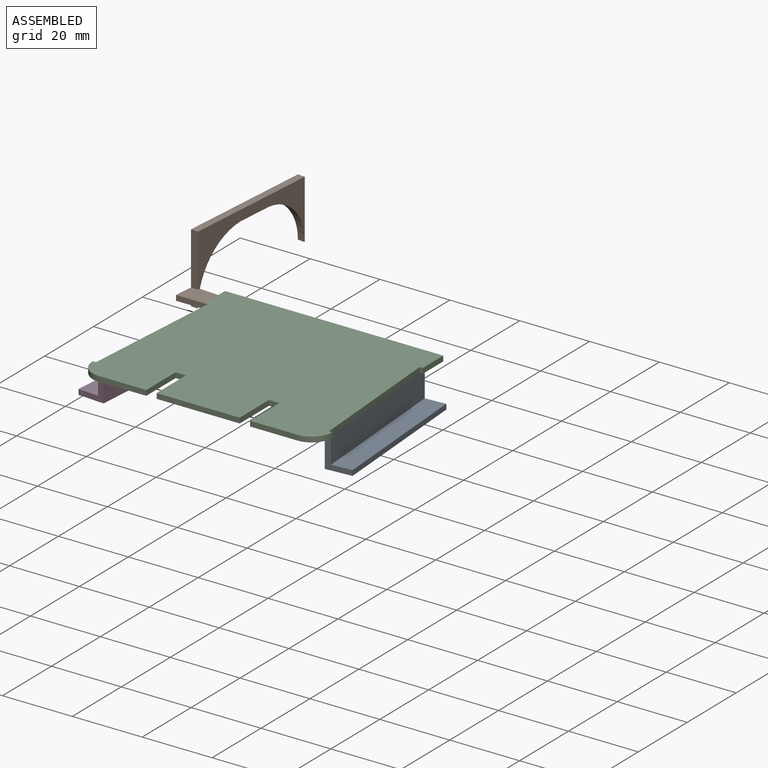
[diagram: assembled view]
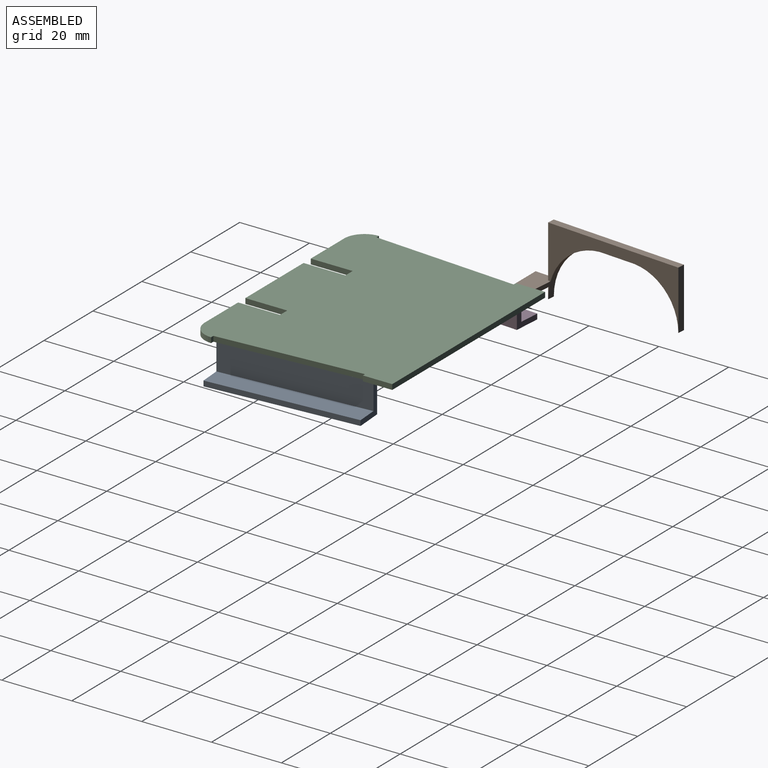
[diagram: assembled view, second angle]
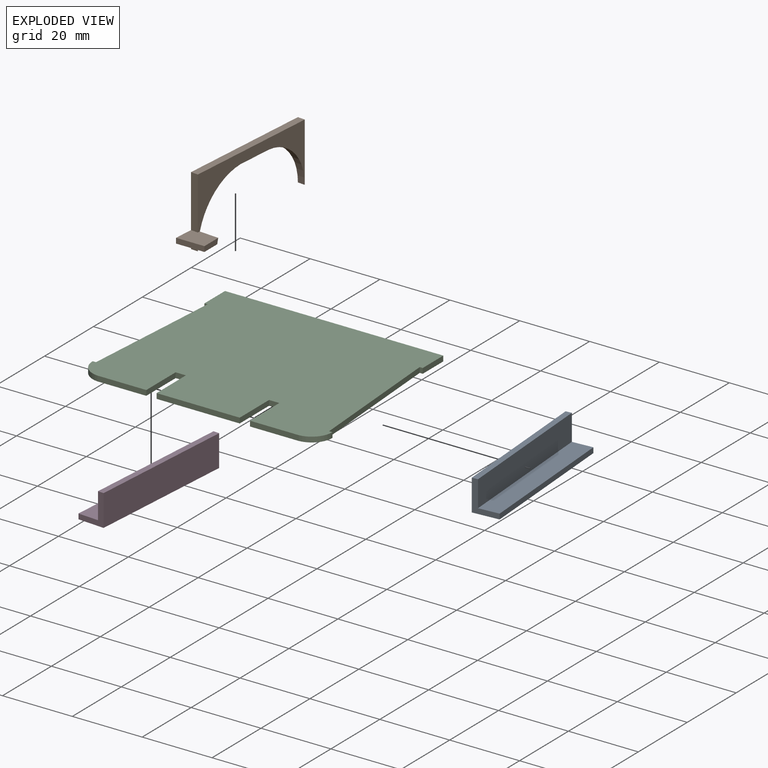
[diagram: exploded view]
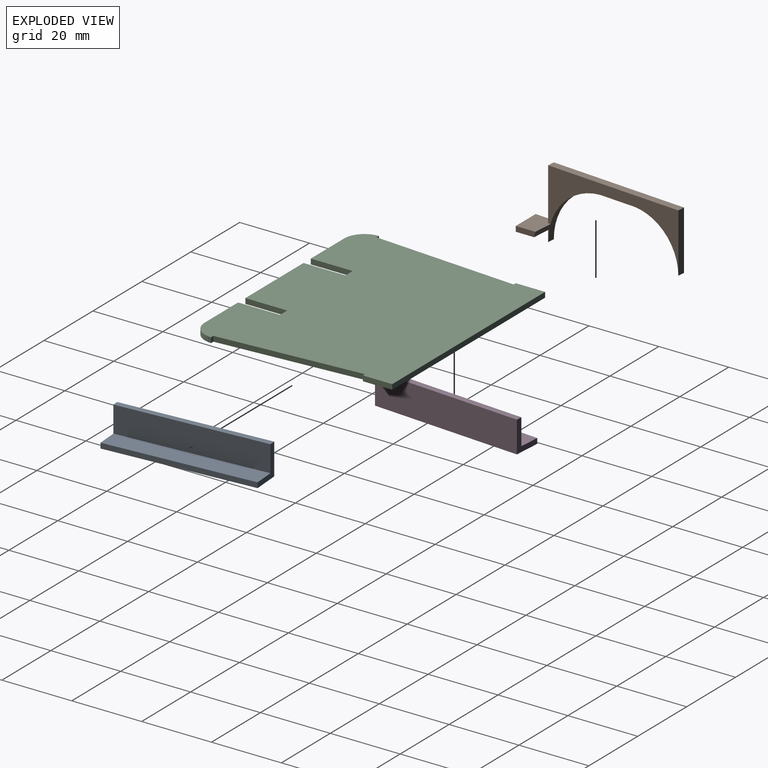
[diagram: exploded view, second angle]
ASSEMBLY  parts=4 mates=3
PART A: 8 faces, bbox 10.7x43.3x9 mm
  f0: plane 42.79x7.5mm, normal (-1,0.07,0), area 321.8mm2, adj f1,f2,f5,f6
  f1: plane 9x7.58mm, normal (-0.07,-1,0), area 24.1mm2, adj f0,f3,f4,f5,f6,f7
  f2: plane 9x7.58mm, normal (0.07,1,0), area 24.1mm2, adj f0,f3,f4,f5,f6,f7
  f3: plane 42.79x9mm, normal (1,-0.07,0), area 386.1mm2, adj f1,f2,f4,f5
  f4: plane 43.34x10.69mm, normal (0,0,-1), area 326mm2, adj f1,f2,f3,f7
  f5: plane 42.91x4.8mm, normal (0,0,1), area 72.9mm2, adj f0,f1,f2,f3
  f6: plane 43.21x8.99mm, normal (0,0,1), area 253.1mm2, adj f0,f1,f2,f7
  f7: plane 42.79x3.11mm, normal (-1,0.07,0), area 64.4mm2, adj f1,f2,f4,f6
PART B: 14 faces, bbox 9.3x44.9x19.9 mm
  f0: plane 8.12x6.06mm, normal (0,0,1), area 45.3mm2, adj f2,f3,f6,f7,f8,f13
  f1: plane 8.12x5.68mm, normal (0,0,-1), area 43.2mm2, adj f2,f3,f4,f5,f6,f13
  f2: plane 44.88x19.9mm, normal (-1,0.08,0), area 229mm2, adj f0,f1,f5,f6,f8,f9,f10,f11
  f3: plane 5.64x1.5mm, normal (1,0,0), area 8.1mm2, adj f0,f1,f6,f13
  f4: plane 3.4x0.34mm, normal (1,-0.08,0), area 0.4mm2, adj f1,f5,f6
  f5: plane 3.4x2.09mm, normal (-0.08,-1,0), area 7.1mm2, adj f1,f2,f4,f6
  f6: cylinder r=16.95mm len=16.9mm, axis (-1,0.08,0), area 61.9mm2, adj f0,f1,f2,f3,f4,f5,f7,f9
  f7: plane 39.38x16.9mm, normal (1,-0.08,0), area 219.6mm2, adj f0,f6,f8,f9,f10,f11,f12
  f8: plane 15x2.09mm, normal (-0.08,-1,0), area 31.5mm2, adj f0,f2,f7,f12
  f9: plane 10.54x2.89mm, normal (0,0,-1), area 21.9mm2, adj f2,f6,f7,f11
  f10: plane 16.9x2.09mm, normal (0.08,1,0), area 35.5mm2, adj f2,f7,f11,f12
  f11: cylinder r=13.91mm len=13.9mm, axis (-1,0.08,0), area 44.8mm2, adj f2,f7,f9,f10
  f12: plane 39.55x5.12mm, normal (0,0,1), area 82.9mm2, adj f2,f7,f8,f10
  f13: plane 8.12x1.5mm, normal (0,-1,0), area 12.2mm2, adj f0,f1,f2,f3
PART C: 22 faces, bbox 68.7x55.6x1.5 mm
  f0: plane 23.8x1.5mm, normal (0,-1,0), area 35.7mm2, adj f2,f3,f18,f19
  f1: plane 14x1.5mm, normal (0,-1,0), area 21mm2, adj f2,f3,f11,f16
  f2: plane 68.65x55.6mm, normal (0,0,1), area 3477.3mm2, adj f0,f1,f4,f5,f6,f7,f8,f9
  f3: plane 68.65x55.6mm, normal (0,0,-1), area 3477.3mm2, adj f0,f1,f4,f5,f6,f7,f8,f9
  f4: plane 62.5x1.5mm, normal (0,1,0), area 93.8mm2, adj f2,f3,f5,f15
  f5: plane 8.4x1.5mm, normal (-1,0,0), area 12.6mm2, adj f2,f3,f4,f6
  f6: plane 1.5x0.88mm, normal (0,-1,0), area 1.3mm2, adj f2,f3,f5,f7
  f7: plane 41.3x3mm, normal (-1,0.07,0), area 62.1mm2, adj f2,f3,f6,f8
  f8: plane 1.5x0.95mm, normal (0,1,0), area 1.4mm2, adj f2,f3,f7,f9
  f9: cylinder r=5.92mm len=5.9mm, axis (0,0,-1), area 13.3mm2, adj f2,f3,f8,f10
  f10: plane 14x1.5mm, normal (0,-1,0), area 21mm2, adj f2,f3,f9,f21
  f11: cylinder r=5.92mm len=5.9mm, axis (0,0,-1), area 13.3mm2, adj f1,f2,f3,f12
  f12: plane 1.5x0.95mm, normal (0,1,0), area 1.4mm2, adj f2,f3,f11,f13
  f13: plane 41.3x3mm, normal (1,0.07,0), area 62.1mm2, adj f2,f3,f12,f14
  f14: plane 1.5x0.88mm, normal (0,-1,0), area 1.3mm2, adj f2,f3,f13,f15
  f15: plane 8.4x1.5mm, normal (1,0,0), area 12.6mm2, adj f2,f3,f4,f14
  f16: plane 12x1.5mm, normal (-1,0,0), area 18mm2, adj f1,f2,f3,f17
  f17: plane 2.95x1.5mm, normal (0,-1,0), area 4.4mm2, adj f2,f3,f16,f18
  f18: plane 12x1.5mm, normal (1,0,0), area 18mm2, adj f0,f2,f3,f17
  f19: plane 12x1.5mm, normal (-1,0,0), area 18mm2, adj f0,f2,f3,f20
  f20: plane 2.95x1.5mm, normal (0,-1,0), area 4.4mm2, adj f2,f3,f19,f21
  f21: plane 12x1.5mm, normal (1,0,0), area 18mm2, adj f2,f3,f10,f20
PART D: same geometry as A
PLACE A rot(axis=(0,0,-1),171.7deg) t=(-3.8,52.32,0)mm
PLACE B at identity
PLACE C at identity fixed
PLACE D t=(-0.13,-0.99,0)mm
MATE fastened B.f0 <-> C.f2  axis (0,0,1) through (-31.25,47.2,1.5)mm
MATE fastened A.f0 <-> C.f13  axis (1,0.07,0) through (33.32,6.71,0)mm
MATE fastened D.f5 <-> C.f3  axis (0,0,1) through (-33.38,6.71,0)mm
